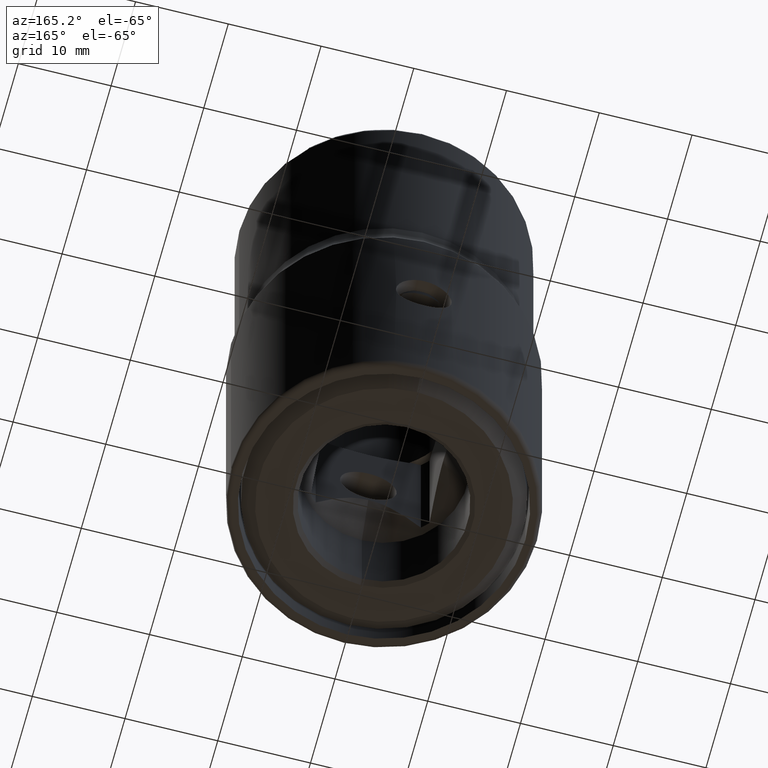
[diagram: clean part render]
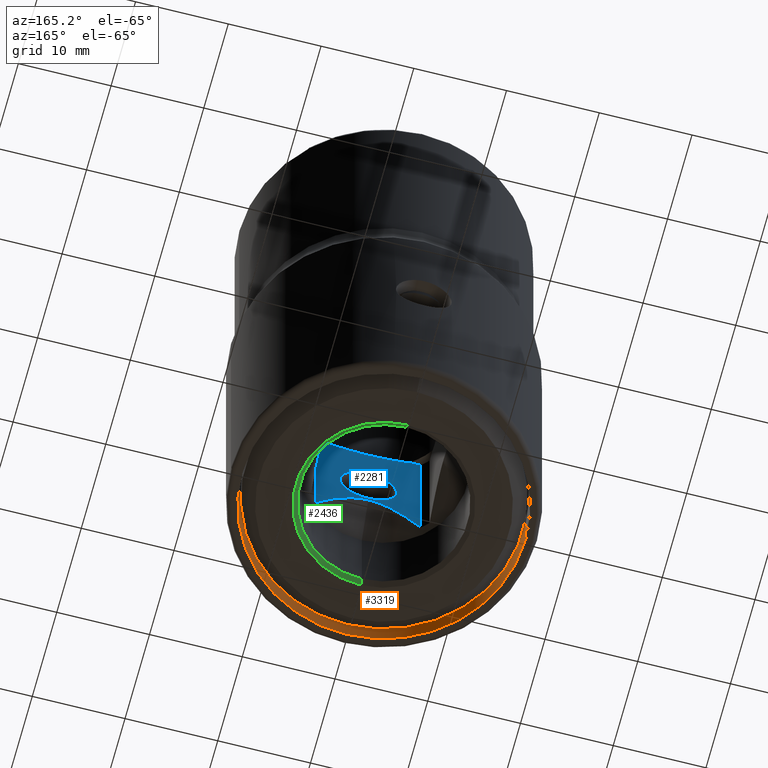
[diagram: same view with three faces highlighted in distinct colors, each labeled with its STEP entity id]
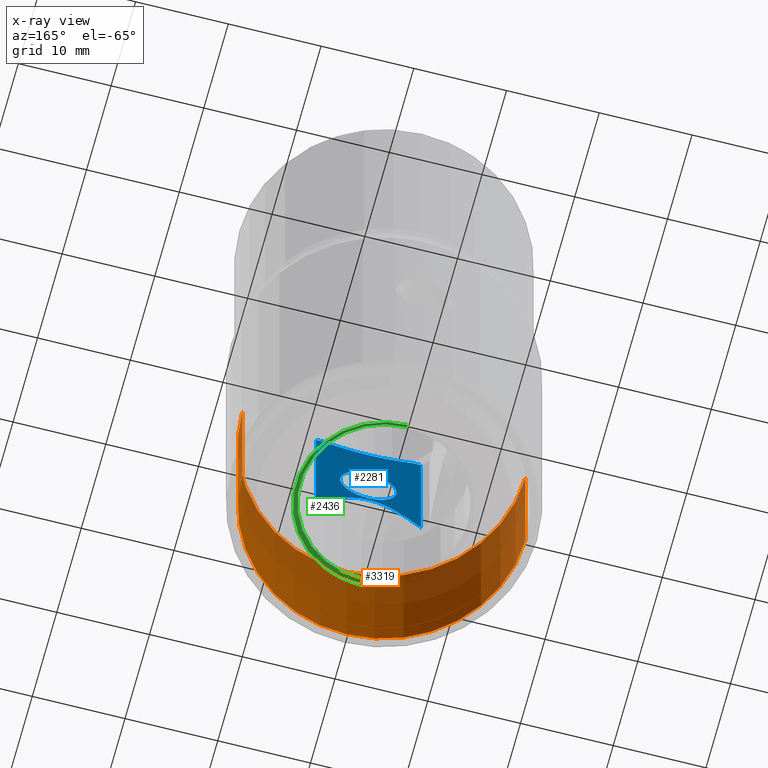
[diagram: x-ray of the same camera — body ghosted, the three highlighted faces saturated]
A machine part, auxiliary view with three faces highlighted in distinct colors.
The next image is the same camera in x-ray (body ghosted, the three faces saturated) — at least one of them is partly hidden behind the body in this view.
Their STEP definitions:

[orange] entity #3319 — the highlighted cylindrical surface (partial cylindrical patch) has radius 15.25 mm, axis along (0, 0, 1).
#2734=CARTESIAN_POINT('',(0.E0,0.E0,-3.E-1));
#2735=DIRECTION('',(0.E0,0.E0,1.E0));
#2736=DIRECTION('',(1.E0,0.E0,0.E0));
#2737=AXIS2_PLACEMENT_3D('',#2734,#2735,#2736);
#2782=DIRECTION('',(0.E0,0.E0,-1.E0));
#2783=VECTOR('',#2782,1.541036334464E1);
#2784=CARTESIAN_POINT('',(1.525E1,0.E0,1.511036334464E1));
#2785=LINE('',#2784,#2783);
#2789=CARTESIAN_POINT('',(0.E0,0.E0,1.511036334464E1));
#2790=DIRECTION('',(0.E0,0.E0,1.E0));
#2791=DIRECTION('',(1.E0,0.E0,0.E0));
#2792=AXIS2_PLACEMENT_3D('',#2789,#2790,#2791);
#2880=DIRECTION('',(0.E0,0.E0,-1.E0));
#2881=VECTOR('',#2880,1.541036334464E1);
#2882=CARTESIAN_POINT('',(-1.525E1,0.E0,1.511036334464E1));
#2883=LINE('',#2882,#2881);
#3221=CARTESIAN_POINT('',(1.525E1,0.E0,-3.E-1));
#3222=CARTESIAN_POINT('',(-1.525E1,0.E0,-3.E-1));
#3223=VERTEX_POINT('',#3221);
#3224=VERTEX_POINT('',#3222);
#3247=CARTESIAN_POINT('',(1.525E1,0.E0,1.511036334464E1));
#3248=VERTEX_POINT('',#3247);
#3251=CARTESIAN_POINT('',(-1.525E1,0.E0,1.511036334464E1));
#3252=VERTEX_POINT('',#3251);
#3305=CARTESIAN_POINT('',(0.E0,0.E0,2.97E1));
#3306=DIRECTION('',(0.E0,0.E0,1.E0));
#3307=DIRECTION('',(1.E0,0.E0,0.E0));
#3308=AXIS2_PLACEMENT_3D('',#3305,#3306,#3307);
#3309=CYLINDRICAL_SURFACE('',#3308,1.525E1);
#3311=ORIENTED_EDGE('',*,*,#3310,.F.);
#3313=ORIENTED_EDGE('',*,*,#3312,.T.);
#3314=ORIENTED_EDGE('',*,*,#3282,.T.);
#3316=ORIENTED_EDGE('',*,*,#3315,.F.);
#3317=EDGE_LOOP('',(#3311,#3313,#3314,#3316));
#3318=FACE_OUTER_BOUND('',#3317,.F.);
#3319=ADVANCED_FACE('',(#3318),#3309,.F.);
#2738=CIRCLE('',#2737,1.525E1);
#2793=CIRCLE('',#2792,1.525E1);
#3282=EDGE_CURVE('',#3223,#3224,#2738,.T.);
#3310=EDGE_CURVE('',#3248,#3252,#2793,.T.);
#3312=EDGE_CURVE('',#3248,#3223,#2785,.T.);
#3315=EDGE_CURVE('',#3252,#3224,#2883,.T.);

[blue] entity #2281 — the highlighted planar face has unit normal (0, -1, 0).
#770=DIRECTION('',(-1.E0,0.E0,0.E0));
#771=VECTOR('',#770,1.199143934849E0);
#772=CARTESIAN_POINT('',(-4.464642342898E0,-6.405E0,1.62E1));
#773=LINE('',#772,#771);
#797=DIRECTION('',(-1.E0,0.E0,0.E0));
#798=VECTOR('',#797,1.199143934849E0);
#799=CARTESIAN_POINT('',(5.663786277747E0,-6.405E0,1.62E1));
#800=LINE('',#799,#798);
#858=DIRECTION('',(0.E0,0.E0,1.E0));
#859=VECTOR('',#858,1.537900791721E1);
#860=CARTESIAN_POINT('',(-5.663786277747E0,-6.405E0,8.209920827877E-1));
#861=LINE('',#860,#859);
#867=CARTESIAN_POINT('',(0.E0,-6.405E0,8.E0));
#868=DIRECTION('',(0.E0,1.E0,0.E0));
#869=DIRECTION('',(0.E0,0.E0,-1.E0));
#870=AXIS2_PLACEMENT_3D('',#867,#868,#869);
#872=CARTESIAN_POINT('',(0.E0,-6.405E0,8.E0));
#873=DIRECTION('',(0.E0,1.E0,0.E0));
#874=DIRECTION('',(0.E0,0.E0,1.E0));
#875=AXIS2_PLACEMENT_3D('',#872,#873,#874);
#877=CARTESIAN_POINT('',(0.E0,-6.405E0,4.536241065023E0));
#878=CARTESIAN_POINT('',(-2.339187231382E-1,-6.405E0,4.536241065023E0));
#879=CARTESIAN_POINT('',(-7.098266761401E-1,-6.405E0,4.491298777830E0));
#880=CARTESIAN_POINT('',(-1.439460422199E0,-6.405E0,4.283012936418E0));
#881=CARTESIAN_POINT('',(-2.210253069438E0,-6.405E0,3.918156148817E0));
#882=CARTESIAN_POINT('',(-3.017802854795E0,-6.405E0,3.389252541775E0));
#883=CARTESIAN_POINT('',(-3.859305689015E0,-6.405E0,2.698896883854E0));
#884=CARTESIAN_POINT('',(-4.736196226240E0,-6.405E0,1.851553754454E0));
#885=CARTESIAN_POINT('',(-5.349546722054E0,-6.405E0,1.181539361190E0));
#886=CARTESIAN_POINT('',(-5.663786277747E0,-6.405E0,8.209920827877E-1));
#888=CARTESIAN_POINT('',(5.663786277747E0,-6.405E0,8.209920827877E-1));
#889=CARTESIAN_POINT('',(5.349538488233E0,-6.405E0,1.181548808383E0));
#890=CARTESIAN_POINT('',(4.736208257109E0,-6.405E0,1.851537115285E0));
#891=CARTESIAN_POINT('',(3.859513353459E0,-6.405E0,2.698696211419E0));
#892=CARTESIAN_POINT('',(3.018321813197E0,-6.405E0,3.388853293032E0));
#893=CARTESIAN_POINT('',(2.210910483219E0,-6.405E0,3.917779243256E0));
#894=CARTESIAN_POINT('',(1.440133552954E0,-6.405E0,4.282754877914E0));
#895=CARTESIAN_POINT('',(7.104230907535E-1,-6.405E0,4.491202017072E0));
#896=CARTESIAN_POINT('',(2.341551370524E-1,-6.405E0,4.536241065023E0));
#897=CARTESIAN_POINT('',(0.E0,-6.405E0,4.536241065023E0));
#899=DIRECTION('',(0.E0,0.E0,1.E0));
#900=VECTOR('',#899,1.537900791721E1);
#901=CARTESIAN_POINT('',(5.663786277747E0,-6.405E0,8.209920827877E-1));
#902=LINE('',#901,#900);
#903=DIRECTION('',(0.E0,0.E0,-1.E0));
#904=VECTOR('',#903,1.E-1);
#905=CARTESIAN_POINT('',(4.464642342898E0,-6.405E0,1.62E1));
#906=LINE('',#905,#904);
#907=CARTESIAN_POINT('',(-4.464642342898E0,-6.405E0,1.61E1));
#908=CARTESIAN_POINT('',(-4.063240343034E0,-6.405E0,1.601645507355E1));
#909=CARTESIAN_POINT('',(-3.279118142086E0,-6.405E0,1.586872434114E1));
#910=CARTESIAN_POINT('',(-2.181411858593E0,-6.405E0,1.571153623916E1));
#911=CARTESIAN_POINT('',(-1.092272160778E0,-6.405E0,1.561230377025E1));
#912=CARTESIAN_POINT('',(1.009511624915E-3,-6.405E0,1.557811823694E1));
#913=CARTESIAN_POINT('',(1.094093962078E0,-6.405E0,1.561241392325E1));
#914=CARTESIAN_POINT('',(2.183387764481E0,-6.405E0,1.571178609018E1));
#915=CARTESIAN_POINT('',(3.279339359450E0,-6.405E0,1.586878302447E1));
#916=CARTESIAN_POINT('',(4.063278370651E0,-6.405E0,1.601646298835E1));
#917=CARTESIAN_POINT('',(4.464642342898E0,-6.405E0,1.61E1));
#919=DIRECTION('',(1.776356839400E-14,0.E0,1.E0));
#920=VECTOR('',#919,1.E-1);
#921=CARTESIAN_POINT('',(-4.464642342898E0,-6.405E0,1.61E1));
#922=LINE('',#921,#920);
#1242=CARTESIAN_POINT('',(5.663786277747E0,-6.405E0,1.62E1));
#1244=VERTEX_POINT('',#1242);
#1245=CARTESIAN_POINT('',(-5.663786277747E0,-6.405E0,1.62E1));
#1247=VERTEX_POINT('',#1245);
#1265=CARTESIAN_POINT('',(0.E0,-6.405E0,4.955E0));
#1266=CARTESIAN_POINT('',(0.E0,-6.405E0,1.1045E1));
#1267=VERTEX_POINT('',#1265);
#1268=VERTEX_POINT('',#1266);
#1310=CARTESIAN_POINT('',(-4.464642342898E0,-6.405E0,1.62E1));
#1312=VERTEX_POINT('',#1310);
#1325=CARTESIAN_POINT('',(4.464642342898E0,-6.405E0,1.62E1));
#1327=VERTEX_POINT('',#1325);
#1337=CARTESIAN_POINT('',(-4.464642342898E0,-6.405E0,1.61E1));
#1338=VERTEX_POINT('',#1337);
#1339=CARTESIAN_POINT('',(4.464642342898E0,-6.405E0,1.61E1));
#1340=VERTEX_POINT('',#1339);
#1357=VERTEX_POINT('',#877);
#1358=VERTEX_POINT('',#886);
#1359=VERTEX_POINT('',#888);
#2256=CARTESIAN_POINT('',(5.663786277747E0,-6.405E0,0.E0));
#2257=DIRECTION('',(0.E0,-1.E0,0.E0));
#2258=DIRECTION('',(-1.E0,0.E0,0.E0));
#2259=AXIS2_PLACEMENT_3D('',#2256,#2257,#2258);
#2260=PLANE('',#2259);
#2262=ORIENTED_EDGE('',*,*,#2261,.F.);
#2264=ORIENTED_EDGE('',*,*,#2263,.F.);
#2266=ORIENTED_EDGE('',*,*,#2265,.T.);
#2267=ORIENTED_EDGE('',*,*,#2196,.T.);
#2268=ORIENTED_EDGE('',*,*,#2139,.T.);
#2270=ORIENTED_EDGE('',*,*,#2269,.F.);
#2271=ORIENTED_EDGE('',*,*,#2135,.T.);
#2272=ORIENTED_EDGE('',*,*,#2169,.T.);
#2273=ORIENTED_EDGE('',*,*,#2247,.F.);
#2274=EDGE_LOOP('',(#2262,#2264,#2266,#2267,#2268,#2270,#2271,#2272,#2273));
#2275=FACE_OUTER_BOUND('',#2274,.F.);
#2276=ORIENTED_EDGE('',*,*,#1548,.T.);
#2278=ORIENTED_EDGE('',*,*,#2277,.T.);
#2279=EDGE_LOOP('',(#2276,#2278));
#2280=FACE_BOUND('',#2279,.F.);
#2281=ADVANCED_FACE('',(#2275,#2280),#2260,.F.);
#871=CIRCLE('',#870,3.045E0);
#876=CIRCLE('',#875,3.045E0);
#887=B_SPLINE_CURVE_WITH_KNOTS('',3,(#877,#878,#879,#880,#881,#882,#883,#884,
#885,#886),.UNSPECIFIED.,.F.,.F.,(4,1,1,1,1,1,1,4),(0.E0,1.428571428571E-1,
2.857142857143E-1,4.285714285714E-1,5.714285714286E-1,7.142857142857E-1,
8.571428571429E-1,1.E0),.UNSPECIFIED.);
#898=B_SPLINE_CURVE_WITH_KNOTS('',3,(#888,#889,#890,#891,#892,#893,#894,#895,
#896,#897),.UNSPECIFIED.,.F.,.F.,(4,1,1,1,1,1,1,4),(0.E0,1.428571428571E-1,
2.857142857143E-1,4.285714285714E-1,5.714285714286E-1,7.142857142857E-1,
8.571428571429E-1,1.E0),.UNSPECIFIED.);
#918=B_SPLINE_CURVE_WITH_KNOTS('',3,(#907,#908,#909,#910,#911,#912,#913,#914,
#915,#916,#917),.UNSPECIFIED.,.F.,.F.,(4,1,1,1,1,1,1,1,4),(0.E0,1.25E-1,2.5E-1,
3.75E-1,5.E-1,6.25E-1,7.5E-1,8.75E-1,1.E0),.UNSPECIFIED.);
#1548=EDGE_CURVE('',#1267,#1268,#871,.T.);
#2135=EDGE_CURVE('',#1338,#1312,#922,.T.);
#2139=EDGE_CURVE('',#1327,#1340,#906,.T.);
#2169=EDGE_CURVE('',#1312,#1247,#773,.T.);
#2196=EDGE_CURVE('',#1244,#1327,#800,.T.);
#2247=EDGE_CURVE('',#1358,#1247,#861,.T.);
#2261=EDGE_CURVE('',#1357,#1358,#887,.T.);
#2263=EDGE_CURVE('',#1359,#1357,#898,.T.);
#2265=EDGE_CURVE('',#1359,#1244,#902,.T.);
#2269=EDGE_CURVE('',#1338,#1340,#918,.T.);
#2277=EDGE_CURVE('',#1268,#1267,#876,.T.);

[green] entity #2436 — the highlighted conical surface has half-angle 45 deg.
#1054=CARTESIAN_POINT('',(0.E0,0.E0,-9.5E0));
#1055=DIRECTION('',(0.E0,0.E0,1.E0));
#1056=DIRECTION('',(0.E0,-1.E0,0.E0));
#1057=AXIS2_PLACEMENT_3D('',#1054,#1055,#1056);
#1064=DIRECTION('',(2.154062708214E-9,7.071067811865E-1,7.071067811865E-1));
#1065=VECTOR('',#1064,7.071067808245E-1);
#1066=CARTESIAN_POINT('',(-5.263609124853E-9,-9.523999999115E0,
-9.999999999115E0));
#1067=LINE('',#1066,#1065);
#1068=CARTESIAN_POINT('',(0.E0,0.E0,-1.E1));
#1069=DIRECTION('',(0.E0,0.E0,1.E0));
#1070=DIRECTION('',(0.E0,-1.E0,0.E0));
#1071=AXIS2_PLACEMENT_3D('',#1068,#1069,#1070);
#1088=DIRECTION('',(-2.154061621672E-9,-7.071067811865E-1,7.071067811865E-1));
#1089=VECTOR('',#1088,7.071067808245E-1);
#1090=CARTESIAN_POINT('',(5.263606048502E-9,9.523999999115E0,
-9.999999999115E0));
#1091=LINE('',#1090,#1089);
#1375=CARTESIAN_POINT('',(0.E0,-9.524E0,-1.E1));
#1376=CARTESIAN_POINT('',(0.E0,9.524E0,-1.E1));
#1377=VERTEX_POINT('',#1375);
#1378=VERTEX_POINT('',#1376);
#1379=CARTESIAN_POINT('',(0.E0,-9.024E0,-9.5E0));
#1380=CARTESIAN_POINT('',(0.E0,9.024E0,-9.5E0));
#1381=VERTEX_POINT('',#1379);
#1382=VERTEX_POINT('',#1380);
#2422=CARTESIAN_POINT('',(0.E0,0.E0,-9.749999999281E0));
#2423=DIRECTION('',(0.E0,0.E0,-1.E0));
#2424=DIRECTION('',(0.E0,-1.E0,0.E0));
#2425=AXIS2_PLACEMENT_3D('',#2422,#2423,#2424);
#2426=CONICAL_SURFACE('',#2425,9.273999999281E0,4.5E1);
#2428=ORIENTED_EDGE('',*,*,#2427,.T.);
#2430=ORIENTED_EDGE('',*,*,#2429,.T.);
#2431=ORIENTED_EDGE('',*,*,#2412,.F.);
#2433=ORIENTED_EDGE('',*,*,#2432,.F.);
#2434=EDGE_LOOP('',(#2428,#2430,#2431,#2433));
#2435=FACE_OUTER_BOUND('',#2434,.F.);
#2436=ADVANCED_FACE('',(#2435),#2426,.F.);
#1058=CIRCLE('',#1057,9.024E0);
#1072=CIRCLE('',#1071,9.524E0);
#2412=EDGE_CURVE('',#1381,#1382,#1058,.T.);
#2427=EDGE_CURVE('',#1377,#1378,#1072,.T.);
#2429=EDGE_CURVE('',#1378,#1382,#1091,.T.);
#2432=EDGE_CURVE('',#1377,#1381,#1067,.T.);